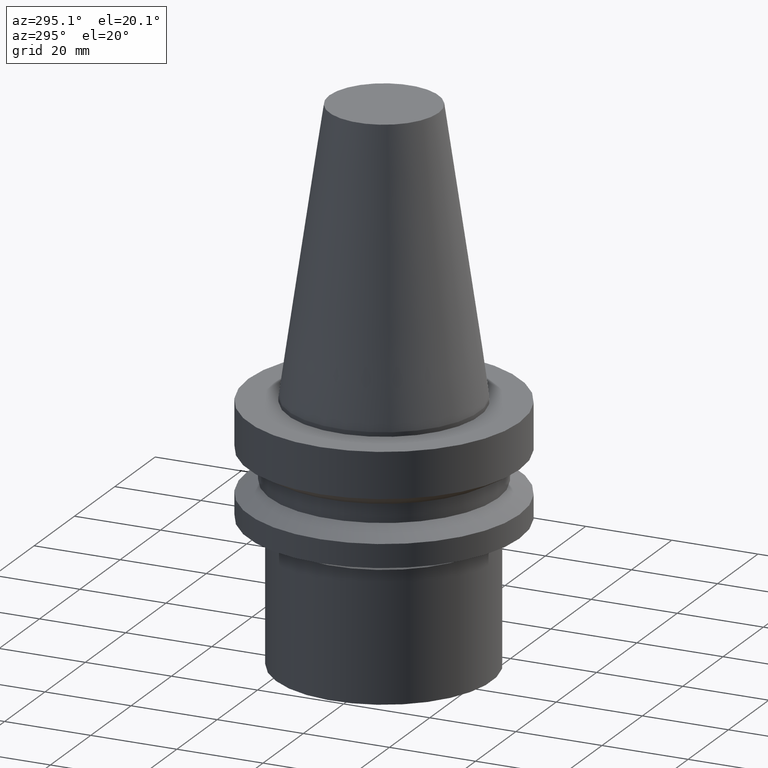
[diagram: clean part render]
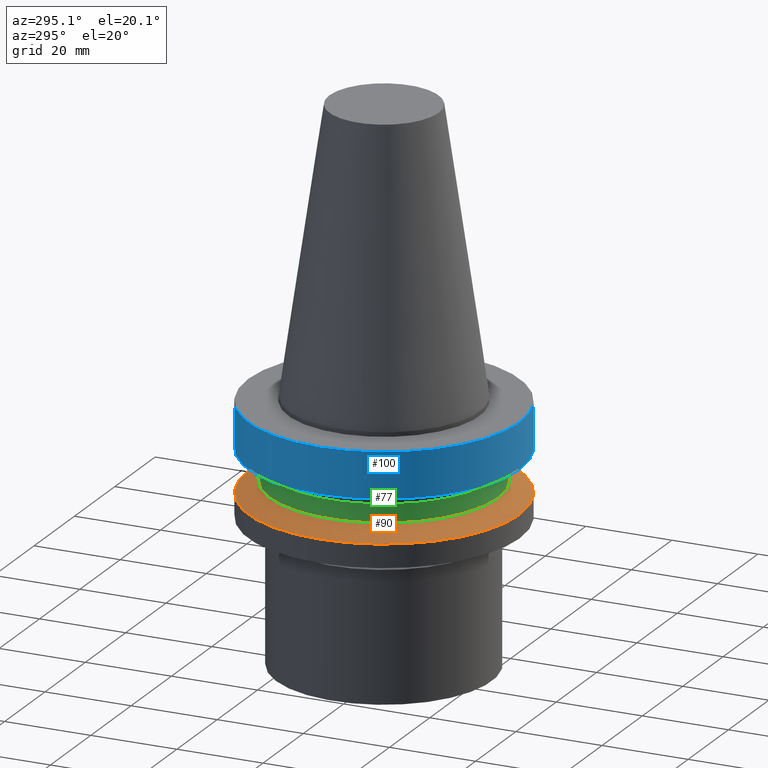
[diagram: same view with three faces highlighted in distinct colors, each labeled with its STEP entity id]
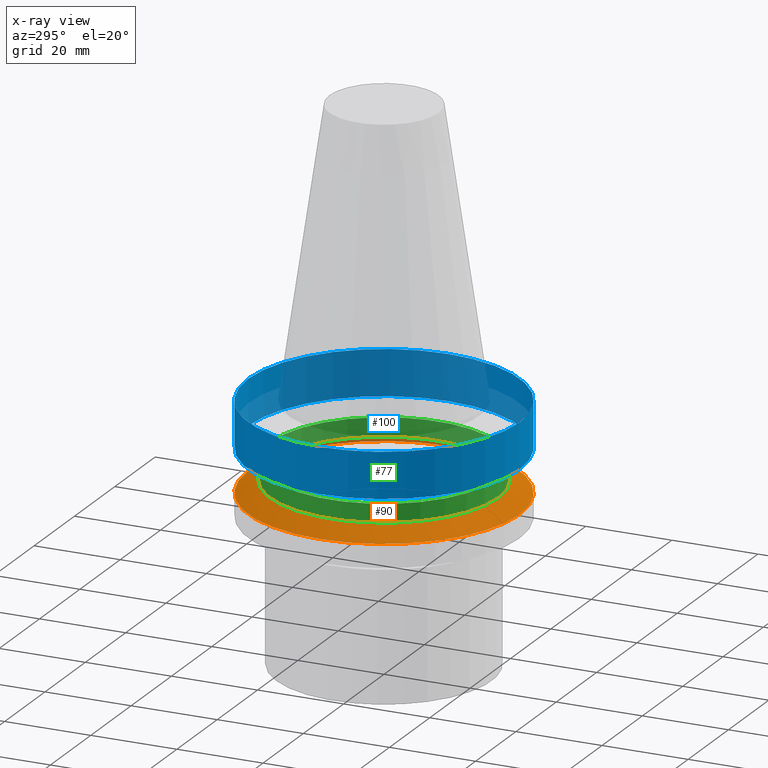
[diagram: x-ray of the same camera — body ghosted, the three highlighted faces saturated]
A machine part, auxiliary view with three faces highlighted in distinct colors.
The next image is the same camera in x-ray (body ghosted, the three faces saturated) — at least one of them is partly hidden behind the body in this view.
Their STEP definitions:

[orange] entity #90 — the highlighted conical surface has half-angle 60 deg.
#90=ADVANCED_FACE('Unnamed[1]',(#212,#213),#214,.T.);
#120=EDGE_CURVE('Unnamed[1]',#257,#257,#258,.T.);
#129=EDGE_CURVE('Unnamed[1]',#271,#271,#272,.T.);
#212=FACE_BOUND('',#372,.T.);
#213=FACE_BOUND('',#373,.T.);
#214=CONICAL_SURFACE('',#374,29.0000000000004,1.04719755119651);
#257=VERTEX_POINT('',#427);
#258=CIRCLE('',#428,31.5000000000007);
#271=VERTEX_POINT('',#445);
#272=CIRCLE('',#446,26.5);
#372=EDGE_LOOP('',(#541));
#373=EDGE_LOOP('',(#542));
#374=AXIS2_PLACEMENT_3D('',#543,#544,#545);
#427=CARTESIAN_POINT('',(1.32473071268174E-015,31.5000000000007,-21.6344943473346));
#428=AXIS2_PLACEMENT_3D('',#587,#588,#589);
#445=CARTESIAN_POINT('',(1.1479681728942E-015,26.5,-18.7477430013855));
#446=AXIS2_PLACEMENT_3D('',#602,#603,#604);
#541=ORIENTED_EDGE('',*,*,#120,.F.);
#542=ORIENTED_EDGE('',*,*,#129,.T.);
#543=CARTESIAN_POINT('',(1.23634944278797E-015,1.16876123842255E-014,-20.1911186743601));
#544=DIRECTION('',(6.12323399573677E-017,-7.56206108338719E-016,-1.0));
#545=DIRECTION('',(4.14771167728621E-032,1.0,-7.56206108338719E-016));
#587=CARTESIAN_POINT('',(1.32473071268174E-015,1.05961228836946E-014,-21.6344943473346));
#588=DIRECTION('',(6.12323399573676E-017,-7.56206108338718E-016,-1.0));
#589=DIRECTION('',(4.14771167728656E-032,1.0,-7.56206108338718E-016));
#602=CARTESIAN_POINT('',(1.1479681728942E-015,1.27791018847564E-014,-18.7477430013855));
#603=DIRECTION('',(6.12323399573677E-017,-7.56206108338719E-016,-1.0));
#604=DIRECTION('',(4.14771167728681E-032,1.0,-7.56206108338719E-016));

[blue] entity #100 — the highlighted cylindrical surface (bore or boss wall) has radius 31.5 mm, axis along (0, -0, -1).
#92=EDGE_CURVE('Unnamed[1]',#216,#216,#217,.T.);
#100=ADVANCED_FACE('Unnamed[1]',(#228,#229),#230,.T.);
#127=EDGE_CURVE('Unnamed[1]',#268,#268,#269,.T.);
#216=VERTEX_POINT('',#377);
#217=CIRCLE('',#378,31.5000000000004);
#228=FACE_BOUND('',#392,.T.);
#229=FACE_BOUND('',#393,.T.);
#230=CYLINDRICAL_SURFACE('',#394,31.5);
#268=VERTEX_POINT('',#441);
#269=CIRCLE('',#442,31.4999999999997);
#377=CARTESIAN_POINT('',(7.08182973902924E-016,31.5000000000004,-11.5655056526664));
#378=AXIS2_PLACEMENT_3D('',#546,#547,#548);
#392=EDGE_LOOP('',(#559));
#393=EDGE_LOOP('',(#560));
#394=AXIS2_PLACEMENT_3D('',#561,#562,#563);
#441=CARTESIAN_POINT('',(6.12323399573568E-017,31.4999999999997,-0.999999999999825));
#442=AXIS2_PLACEMENT_3D('',#599,#600,#601);
#546=CARTESIAN_POINT('',(7.08182973902922E-016,1.82103536393965E-014,-11.5655056526663));
#547=DIRECTION('',(6.12323399573677E-017,-7.56206108338727E-016,-1.0));
#548=DIRECTION('',(4.14771167728632E-032,1.0,-7.56206108338727E-016));
#559=ORIENTED_EDGE('',*,*,#92,.F.);
#560=ORIENTED_EDGE('',*,*,#127,.T.);
#561=CARTESIAN_POINT('',(3.84707656930139E-016,2.22052035955134E-014,-6.28275282633307));
#562=DIRECTION('',(6.12323399573677E-017,-7.56206108338735E-016,-1.0));
#563=DIRECTION('',(4.14771167728636E-032,1.0,-7.56206108338735E-016));
#599=CARTESIAN_POINT('',(6.12323399573555E-017,2.62000535516304E-014,-0.999999999999801));
#600=DIRECTION('',(6.12323399573676E-017,-7.56206108338743E-016,-1.0));
#601=DIRECTION('',(4.1477116772867E-032,1.0,-7.56206108338743E-016));

[green] entity #77 — the highlighted cylindrical surface (bore or boss wall) has radius 26.5 mm, axis along (0, -0, -1).
#77=ADVANCED_FACE('Unnamed[1]',(#192,#193),#194,.T.);
#118=EDGE_CURVE('Unnamed[1]',#254,#254,#255,.T.);
#129=EDGE_CURVE('Unnamed[1]',#271,#271,#272,.T.);
#192=FACE_BOUND('',#347,.T.);
#193=FACE_BOUND('',#348,.T.);
#194=CYLINDRICAL_SURFACE('',#349,26.4999999999997);
#254=VERTEX_POINT('',#423);
#255=CIRCLE('',#424,26.4999999999994);
#271=VERTEX_POINT('',#445);
#272=CIRCLE('',#446,26.5);
#347=EDGE_LOOP('',(#518));
#348=EDGE_LOOP('',(#519));
#349=AXIS2_PLACEMENT_3D('',#520,#521,#522);
#423=CARTESIAN_POINT('',(8.8494551369045E-016,26.4999999999995,-14.4522569986152));
#424=AXIS2_PLACEMENT_3D('',#584,#585,#586);
#445=CARTESIAN_POINT('',(1.1479681728942E-015,26.5,-18.7477430013855));
#446=AXIS2_PLACEMENT_3D('',#602,#603,#604);
#518=ORIENTED_EDGE('',*,*,#129,.F.);
#519=ORIENTED_EDGE('',*,*,#118,.T.);
#520=CARTESIAN_POINT('',(1.01645684329232E-015,1.44032382615457E-014,-16.6000000000003));
#521=DIRECTION('',(6.12323399573677E-017,-7.56206108338727E-016,-1.0));
#522=DIRECTION('',(4.14771167728652E-032,1.0,-7.56206108338727E-016));
#584=CARTESIAN_POINT('',(8.84945513690449E-016,1.60273746383349E-014,-14.4522569986152));
#585=DIRECTION('',(6.12323399573677E-017,-7.56206108338735E-016,-1.0));
#586=DIRECTION('',(4.14771167728657E-032,1.0,-7.56206108338736E-016));
#602=CARTESIAN_POINT('',(1.1479681728942E-015,1.27791018847564E-014,-18.7477430013855));
#603=DIRECTION('',(6.12323399573677E-017,-7.56206108338719E-016,-1.0));
#604=DIRECTION('',(4.14771167728681E-032,1.0,-7.56206108338719E-016));